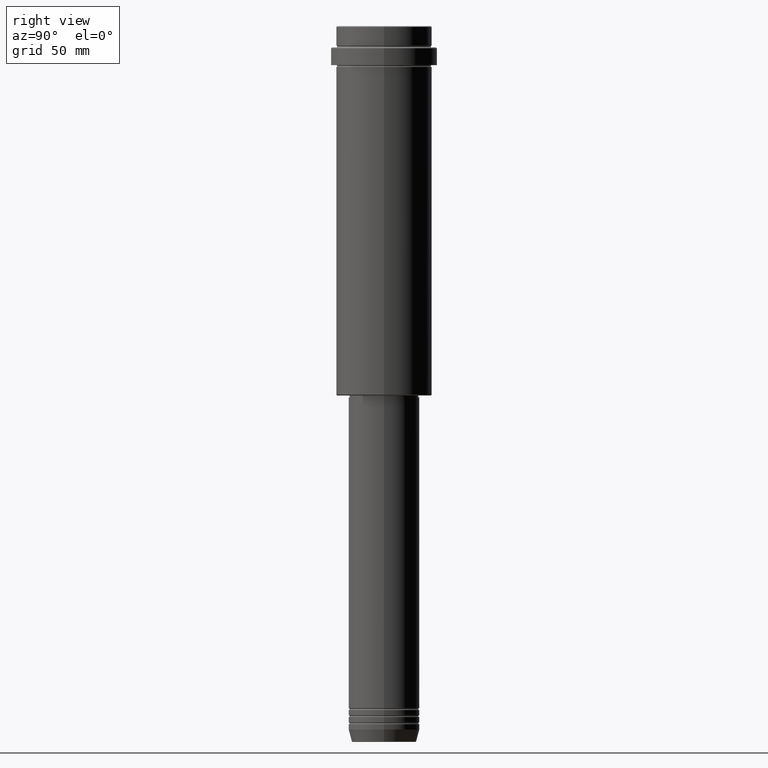
[diagram: clean part render]
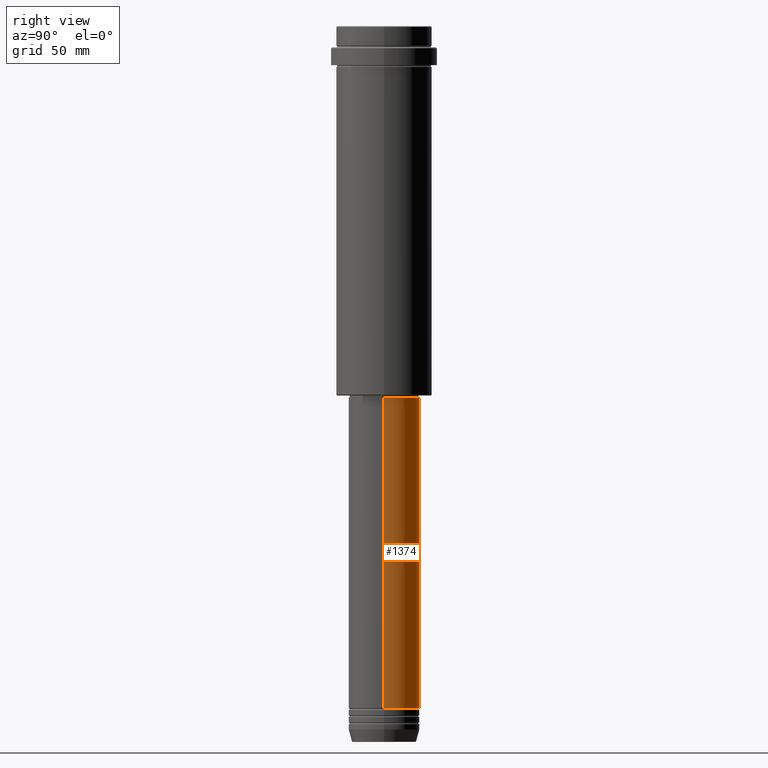
[diagram: same view with one face highlighted and labeled with its STEP entity id]
A machine part, right view. The second image highlights one B-rep face of the part: STEP entity #1374.
In plain terms, the highlighted cylindrical surface (edge-blend (fillet) strip) has radius 20 mm, axis along (-0, -0, 1).
Its self-contained STEP definition (entity closure, byte-faithful):
#102 = CARTESIAN_POINT ( 'NONE',  ( 0.000000000000000000, 0.000000000000000000, 0.000000000000000000 ) ) ;
#156 = CARTESIAN_POINT ( 'NONE',  ( -19.99999999999999645, 2.449293598294706119E-15, 0.000000000000000000 ) ) ;
#260 = CARTESIAN_POINT ( 'NONE',  ( 0.000000000000000000, 0.000000000000000000, -383.9999999999998863 ) ) ;
#270 = AXIS2_PLACEMENT_3D ( 'NONE', #260, #608, #1315 ) ;
#272 = VECTOR ( 'NONE', #1415, 1000.000000000000000 ) ;
#320 = DIRECTION ( 'NONE',  ( -0.000000000000000000, -0.000000000000000000, 1.000000000000000000 ) ) ;
#371 = AXIS2_PLACEMENT_3D ( 'NONE', #646, #320, #967 ) ;
#418 = ORIENTED_EDGE ( 'NONE', *, *, #1394, .F. ) ;
#436 = LINE ( 'NONE', #864, #272 ) ;
#450 = DIRECTION ( 'NONE',  ( -0.000000000000000000, -0.000000000000000000, 1.000000000000000000 ) ) ;
#452 = EDGE_CURVE ( 'NONE', #895, #1134, #1217, .T. ) ;
#454 = CYLINDRICAL_SURFACE ( 'NONE', #685, 19.99999999999999645 ) ;
#457 = VERTEX_POINT ( 'NONE', #501 ) ;
#460 = ORIENTED_EDGE ( 'NONE', *, *, #452, .T. ) ;
#484 = CIRCLE ( 'NONE', #270, 20.00000000000000000 ) ;
#489 = VECTOR ( 'NONE', #1334, 1000.000000000000000 ) ;
#501 = CARTESIAN_POINT ( 'NONE',  ( 20.00000000000000000, 0.000000000000000000, -383.9999999999998863 ) ) ;
#534 = ORIENTED_EDGE ( 'NONE', *, *, #1147, .T. ) ;
#608 = DIRECTION ( 'NONE',  ( -0.000000000000000000, -0.000000000000000000, 1.000000000000000000 ) ) ;
#620 = CARTESIAN_POINT ( 'NONE',  ( 19.99999999999999645, 0.000000000000000000, -209.0000000000001137 ) ) ;
#646 = CARTESIAN_POINT ( 'NONE',  ( 0.000000000000000000, 0.000000000000000000, -209.0000000000001137 ) ) ;
#653 = CARTESIAN_POINT ( 'NONE',  ( -20.00000000000000000, 2.449293598294706513E-15, -383.9999999999998863 ) ) ;
#685 = AXIS2_PLACEMENT_3D ( 'NONE', #102, #450, #877 ) ;
#810 = VERTEX_POINT ( 'NONE', #620 ) ;
#864 = CARTESIAN_POINT ( 'NONE',  ( 19.99999999999999645, 0.000000000000000000, 0.000000000000000000 ) ) ;
#877 = DIRECTION ( 'NONE',  ( 1.000000000000000000, 0.000000000000000000, 0.000000000000000000 ) ) ;
#895 = VERTEX_POINT ( 'NONE', #653 ) ;
#902 = EDGE_LOOP ( 'NONE', ( #534, #460, #1191, #418 ) ) ;
#967 = DIRECTION ( 'NONE',  ( 1.000000000000000000, 0.000000000000000000, 0.000000000000000000 ) ) ;
#1024 = CARTESIAN_POINT ( 'NONE',  ( -19.99999999999999645, 2.449293598294706119E-15, -209.0000000000001137 ) ) ;
#1134 = VERTEX_POINT ( 'NONE', #1024 ) ;
#1147 = EDGE_CURVE ( 'NONE', #457, #895, #484, .T. ) ;
#1191 = ORIENTED_EDGE ( 'NONE', *, *, #1306, .F. ) ;
#1217 = LINE ( 'NONE', #156, #489 ) ;
#1306 = EDGE_CURVE ( 'NONE', #810, #1134, #1325, .T. ) ;
#1315 = DIRECTION ( 'NONE',  ( 1.000000000000000000, 0.000000000000000000, 0.000000000000000000 ) ) ;
#1325 = CIRCLE ( 'NONE', #371, 19.99999999999999645 ) ;
#1334 = DIRECTION ( 'NONE',  ( -0.000000000000000000, -0.000000000000000000, 1.000000000000000000 ) ) ;
#1374 = ADVANCED_FACE ( 'NONE', ( #1408 ), #454, .T. ) ;
#1394 = EDGE_CURVE ( 'NONE', #457, #810, #436, .T. ) ;
#1408 = FACE_OUTER_BOUND ( 'NONE', #902, .T. ) ;
#1415 = DIRECTION ( 'NONE',  ( -0.000000000000000000, -0.000000000000000000, 1.000000000000000000 ) ) ;